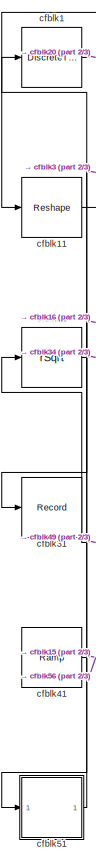
[diagram: root canvas - part 1/3, left side, full height]
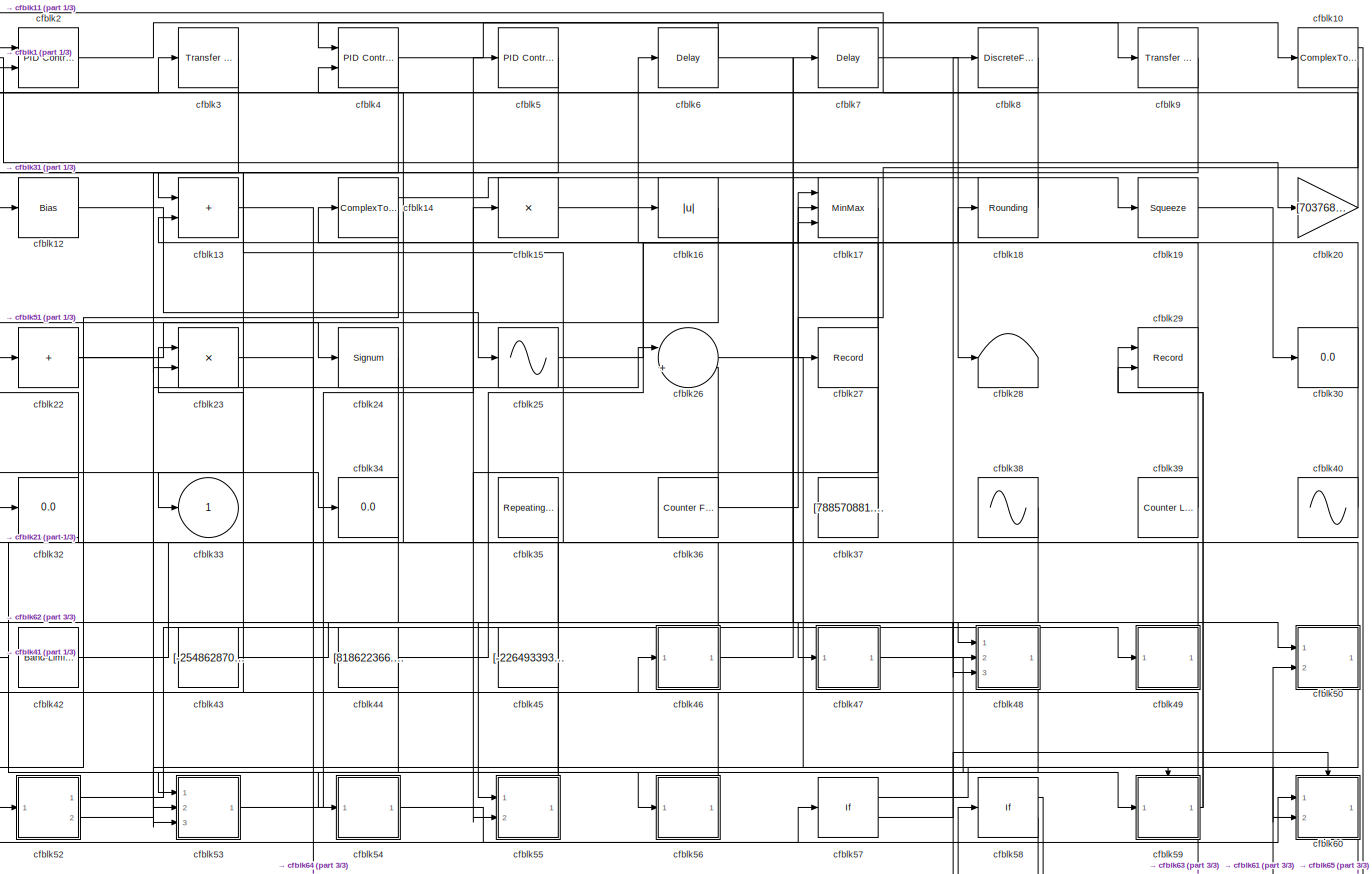
[diagram: root canvas - part 2/3, most of the canvas]
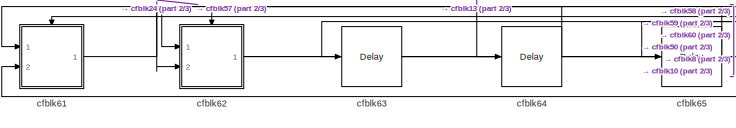
[diagram: root canvas - part 3/3, bottom left region]
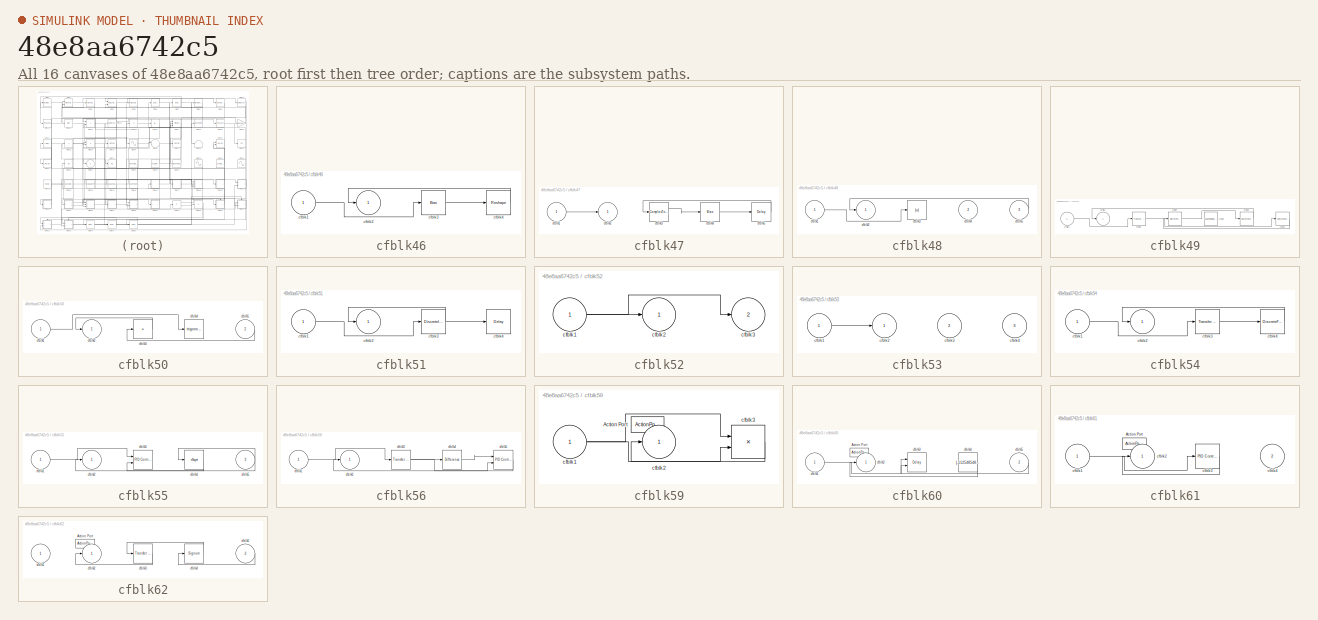
[diagram: thumbnail index - all 16 canvases of the model, root first then tree order]
MODEL slx_48e8aa6742c5
KIND model
CONFIG AbsTol = auto
CONFIG EnableMultiTasking = off
CONFIG FixedStep = auto
CONFIG MaxStep = auto
CONFIG MinStep = auto
CONFIG RelTol = 1e-3
CONFIG SampleTimeConstraint = Unconstrained
CONFIG SolverName = VariableStepAuto
CONFIG StartTime = 0.0
CONFIG StopTime = 10.0
BLOCK [DiscreteTransferFcn] cfblk1
  InputPortMap = u0
  Ports = [1, 1]
  SampleTime = 1
BLOCK [ComplexToMagnitudeAngle] cfblk10
  Ports = [1, 2]
BLOCK [Reshape] cfblk11
  Ports = [1, 1]
BLOCK [Bias] cfblk12
  Bias = [-839679079.278828]
  SaturateOnIntegerOverflow = off
BLOCK [Sum] cfblk13
  IconShape = rectangular
  Ports = [2, 1]
BLOCK [ComplexToRealImag] cfblk14
  Ports = [1, 2]
BLOCK [Product] cfblk15
  Inputs = *
  Ports = [1, 1]
BLOCK [Abs] cfblk16
  SaturateOnIntegerOverflow = off
BLOCK [MinMax] cfblk17
  Inputs = 3
  Ports = [3, 1]
BLOCK [Rounding] cfblk18
BLOCK [Squeeze] cfblk19
BLOCK [Reference] cfblk2  REF=slpidlib/PID Controller (2DOF)
  Ports = [2, 1]
  SourceBlock = slpidlib/PID Controller (2DOF)
  SourceProductBaseCode = SL
  SourceType = PID 2dof
BLOCK [Gain] cfblk20
  Gain = [703768153.704316]
BLOCK [Sqrt] cfblk21
  AlgorithmType = Newton-Raphson
  Operator = rSqrt
BLOCK [Sum] cfblk22
  IconShape = rectangular
  Inputs = +
  Ports = [1, 1]
BLOCK [Product] cfblk23
  Inputs = **
  Ports = [2, 1]
BLOCK [Signum] cfblk24
BLOCK [Sin] cfblk25
  Ports = [1, 1]
  SampleTime = 0
  TimeSource = Use external signal
BLOCK [Sum] cfblk26
  Inputs = |++
  Ports = [2, 1]
BLOCK [Record] cfblk27
  FileSettingsInternal = {"entries":[{"content":{"excelSettings":{"content":{},"type":"Streamout.ExcelSettings"}},"type":"Streamout.FileSettingStorage","uuid":"da171c79-9455-4bc4-b599-ad59c601eab1"}],"packageUris":["http://schema.mathworks.com/mf0/streamout_blocks/R2020a"],"version":"1.0"}
  Ports = [1]
  SignalsInternal = {"entries":[{"content":{"signals":[{"content":{"blockPath":["sampleModel274/cfblk27"],"channel":[],"dimensions":[1],"domain":"sampleModel274/cfblk27","lineColor":"#d95319","plots":[1],"port":1,"sid":[""],"signalID":11430,"signalName":"cfblk10:2"},"type":"RecordBlkView.Signal","uuid":"de21fe3b-9e5d-4fcf-a22f-c191d07c402c"}]},"type":"RecordBlkView.InputSignals","uuid":"227692ee-17b3-4aff-b3a2-317b57...<+100ch>
  VisualizationBindings = {"sparklinesplugin":{"info":[{"bindingParametersList":[],"subplotID":1}]}}
BLOCK [Terminator] cfblk28
BLOCK [Record] cfblk29
  CompatibilityTag = XY
  FileSettingsInternal = {"entries":[{"content":{"excelSettings":{"content":{},"type":"Streamout.ExcelSettings"}},"type":"Streamout.FileSettingStorage","uuid":"df8682e8-c8a1-4e46-83fa-429d7fd2aac6"}],"packageUris":["http://schema.mathworks.com/mf0/streamout_blocks/R2020a"],"version":"1.0"}
  Layout = [1 1]
  Ports = [2]
  SignalsInternal = {"entries":[{"content":{"signals":[{"content":{"blockPath":["sampleModel274/cfblk29"],"channel":[],"dimensions":[1],"domain":"sampleModel274/cfblk29","lineColor":"#a2142f","plots":[1],"port":1,"sid":[""],"signalID":11434,"signalName":"cfblk59"},"type":"RecordBlkView.Signal","uuid":"3771cb38-df6f-4ba8-aa56-16d653237fa3"},{"content":{"blockPath":["sampleModel274/cfblk29"],"channel":[],"dimensions":[...<+385ch>
  VisualizationBindings = {"xyplotplugin":{"info":[{"series":[{"bindingParametersList":[{"parameter":"X-Axis","signalID":11434,"signalName":"cfblk59"},{"parameter":"Y-Axis","signalID":11438,"signalName":"cfblk59"}],"seriesID":42227}],"subplotID":1}]}}
BLOCK [Reference] cfblk3  REF=simulink/Discrete/Transfer Fcn
Real Zero
  Ports = [1, 1]
  SourceBlock = simulink/Discrete/Transfer Fcn\nReal Zero
  SourceProductBaseCode = SL
  SourceType = Transfer Fcn Real Zero
BLOCK [Display] cfblk30
  Decimation = 1
  Ports = [1]
BLOCK [Record] cfblk31
  FileSettingsInternal = {"entries":[{"content":{"excelSettings":{"content":{},"type":"Streamout.ExcelSettings"}},"type":"Streamout.FileSettingStorage","uuid":"8286bbbe-7499-4d96-afe1-02dff4229675"}],"packageUris":["http://schema.mathworks.com/mf0/streamout_blocks/R2020a"],"version":"1.0"}
  Ports = [1]
  SignalsInternal = {"entries":[{"content":{"signals":[{"content":{"blockPath":["sampleModel274/cfblk31"],"channel":[],"dimensions":[1],"domain":"sampleModel274/cfblk31","lineColor":"#77ac30","plots":[1],"port":1,"sid":[""],"signalID":11442,"signalName":"cfblk3"},"type":"RecordBlkView.Signal","uuid":"6ba0b9d0-3280-4b67-acc3-c823acb944ac"}]},"type":"RecordBlkView.InputSignals","uuid":"53318cba-df8b-4c89-a394-e0bd1684e...<+97ch>
  VisualizationBindings = {"sparklinesplugin":{"info":[{"bindingParametersList":[],"subplotID":1}]}}
BLOCK [Display] cfblk32
  Decimation = 1
  Ports = [1]
BLOCK [Outport] cfblk33
BLOCK [Display] cfblk34
  Decimation = 1
  Ports = [1]
BLOCK [Reference] cfblk35  REF=simulink/Sources/Repeating
Sequence
Stair
  Ports = [0, 1]
  SourceBlock = simulink/Sources/Repeating\nSequence\nStair
  SourceProductBaseCode = SL
  SourceType = Repeating Sequence Stair
BLOCK [Reference] cfblk36  REF=simulink/Sources/Counter
Free-Running
  Ports = [0, 1]
  SourceBlock = simulink/Sources/Counter\nFree-Running
  SourceProductBaseCode = SL
  SourceType = Counter Free-Running
BLOCK [Constant] cfblk37
  SampleTime = 1
  Value = [788570881.387773]
BLOCK [Sin] cfblk38
  Amplitude = [-739465234.694335]
  Bias = [254843643.044208]
  Ports = [0, 1]
  SampleTime = 0
BLOCK [Reference] cfblk39  REF=simulink/Sources/Counter
Limited
  Ports = [0, 1]
  SourceBlock = simulink/Sources/Counter\nLimited
  SourceProductBaseCode = SL
  SourceType = Counter Limited
BLOCK [Reference] cfblk4  REF=slpidlib/PID Controller (2DOF)
  Ports = [2, 1]
  SourceBlock = slpidlib/PID Controller (2DOF)
  SourceProductBaseCode = SL
  SourceType = PID 2dof
BLOCK [Sin] cfblk40
  Amplitude = [295858365.780609]
  Bias = [87075267.223711]
  Ports = [0, 1]
  SampleTime = 0
BLOCK [Reference] cfblk41  REF=simulink/Sources/Ramp
  Ports = [0, 1]
  SourceBlock = simulink/Sources/Ramp
  SourceProductBaseCode = SL
  SourceType = Ramp
BLOCK [Reference] cfblk42  REF=simulink/Sources/Band-Limited
White Noise
  Ports = [0, 1]
  SourceBlock = simulink/Sources/Band-Limited\nWhite Noise
  SourceProductBaseCode = SL
  SourceType = Band-Limited White Noise.
BLOCK [Constant] cfblk43
  SampleTime = 1
  Value = [-254862870.291905]
BLOCK [Constant] cfblk44
  SampleTime = 1
  Value = [818622366.403429]
BLOCK [Constant] cfblk45
  SampleTime = 1
  Value = [-226493393.222309]
BLOCK [SubSystem] cfblk46
  Ports = [1, 1]
  RequestExecContextInheritance = off
BLOCK [Inport] cfblk46/cfblk1
BLOCK [Outport] cfblk46/cfblk2
BLOCK [Bias] cfblk46/cfblk3
  Bias = [-974774680.424161]
  SaturateOnIntegerOverflow = off
BLOCK [Reshape] cfblk46/cfblk4
  Ports = [1, 1]
BLOCK [SubSystem] cfblk47
  Ports = [1, 1]
  RequestExecContextInheritance = off
BLOCK [Inport] cfblk47/cfblk1
BLOCK [Outport] cfblk47/cfblk2
BLOCK [ComplexToRealImag] cfblk47/cfblk3
  Ports = [1, 2]
BLOCK [Bias] cfblk47/cfblk4
  Bias = [540442186.712377]
  SaturateOnIntegerOverflow = off
BLOCK [Delay] cfblk47/cfblk5
  InputPortMap = u0
  Ports = [1, 1]
  SampleTime = 1
BLOCK [SubSystem] cfblk48
  Ports = [3, 1]
  RequestExecContextInheritance = off
BLOCK [Inport] cfblk48/cfblk1
BLOCK [Outport] cfblk48/cfblk2
BLOCK [Abs] cfblk48/cfblk3
  SaturateOnIntegerOverflow = off
BLOCK [Inport] cfblk48/cfblk4
  Port = 2
BLOCK [Inport] cfblk48/cfblk5
  Port = 3
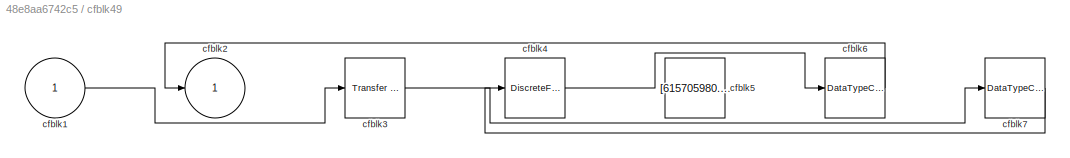
BLOCK [SubSystem] cfblk49
  Ports = [1, 1]
  RequestExecContextInheritance = off
BLOCK [Inport] cfblk49/cfblk1
BLOCK [Outport] cfblk49/cfblk2
BLOCK [Reference] cfblk49/cfblk3  REF=simulink/Discrete/Transfer Fcn
Real Zero
  Ports = [1, 1]
  SourceBlock = simulink/Discrete/Transfer Fcn\nReal Zero
  SourceProductBaseCode = SL
  SourceType = Transfer Fcn Real Zero
BLOCK [DiscreteFilter] cfblk49/cfblk4
  InputPortMap = u0
  Ports = [1, 1]
  SampleTime = 1
BLOCK [Constant] cfblk49/cfblk5
  SampleTime = 1
  Value = [615705980.539279]
BLOCK [DataTypeConversion] cfblk49/cfblk6
  RndMeth = Floor
  SaturateOnIntegerOverflow = off
BLOCK [DataTypeConversion] cfblk49/cfblk7
  RndMeth = Floor
  SaturateOnIntegerOverflow = off
BLOCK [Reference] cfblk5  REF=slpidlib/PID Controller
  Ports = [1, 1]
  SourceBlock = slpidlib/PID Controller
  SourceProductBaseCode = SL
  SourceType = PID 1dof
BLOCK [SubSystem] cfblk50
  Ports = [2, 1]
  RequestExecContextInheritance = off
BLOCK [Inport] cfblk50/cfblk1
BLOCK [Outport] cfblk50/cfblk2
BLOCK [Product] cfblk50/cfblk3
  Inputs = *
  Ports = [1, 1]
BLOCK [Trigonometry] cfblk50/cfblk4
  Ports = [1, 1]
BLOCK [Inport] cfblk50/cfblk5
  Port = 2
BLOCK [SubSystem] cfblk51
  Ports = [1, 1]
  RequestExecContextInheritance = off
BLOCK [Inport] cfblk51/cfblk1
BLOCK [Outport] cfblk51/cfblk2
BLOCK [DiscreteIntegrator] cfblk51/cfblk3
  ICPrevOutput = DiscIntNeverNeededParam
  ICPrevScaledInput = DiscIntNeverNeededParam
  InitialConditionSetting = Auto
  Ports = [1, 1]
BLOCK [Delay] cfblk51/cfblk4
  InputPortMap = u0
  Ports = [1, 1]
  SampleTime = 1
BLOCK [SubSystem] cfblk52
  Ports = [1, 2]
  RequestExecContextInheritance = off
BLOCK [Inport] cfblk52/cfblk1
BLOCK [Outport] cfblk52/cfblk2
BLOCK [Outport] cfblk52/cfblk3
  Port = 2
BLOCK [SubSystem] cfblk53
  Ports = [3, 1]
  RequestExecContextInheritance = off
BLOCK [Inport] cfblk53/cfblk1
BLOCK [Outport] cfblk53/cfblk2
BLOCK [Inport] cfblk53/cfblk3
  Port = 2
BLOCK [Inport] cfblk53/cfblk4
  Port = 3
BLOCK [SubSystem] cfblk54
  Ports = [1, 1]
  RequestExecContextInheritance = off
BLOCK [Inport] cfblk54/cfblk1
BLOCK [Outport] cfblk54/cfblk2
BLOCK [Reference] cfblk54/cfblk3  REF=simulink/Discrete/Transfer Fcn
First Order
  Ports = [1, 1]
  SourceBlock = simulink/Discrete/Transfer Fcn\nFirst Order
  SourceProductBaseCode = SL
  SourceType = First Order Transfer Fcn
BLOCK [DiscreteFir] cfblk54/cfblk4
  InputPortMap = u0
  OutputPortMap = o0
  Ports = [1, 1]
  SampleTime = 1
BLOCK [SubSystem] cfblk55
  Ports = [2, 1]
  RequestExecContextInheritance = off
BLOCK [Inport] cfblk55/cfblk1
BLOCK [Outport] cfblk55/cfblk2
BLOCK [Reference] cfblk55/cfblk3  REF=slpidlib/PID Controller (2DOF)
  Ports = [2, 1]
  SourceBlock = slpidlib/PID Controller (2DOF)
  SourceProductBaseCode = SL
  SourceType = PID 2dof
BLOCK [Sqrt] cfblk55/cfblk4
  AlgorithmType = Newton-Raphson
  Operator = rSqrt
BLOCK [Inport] cfblk55/cfblk5
  Port = 2
BLOCK [SubSystem] cfblk56
  Ports = [1, 1]
  RequestExecContextInheritance = off
BLOCK [Inport] cfblk56/cfblk1
BLOCK [Outport] cfblk56/cfblk2
BLOCK [Reference] cfblk56/cfblk3  REF=simulink/Discrete/Transfer Fcn
Lead or Lag
  Ports = [1, 1]
  SourceBlock = simulink/Discrete/Transfer Fcn\nLead or Lag
  SourceProductBaseCode = SL
  SourceType = Lead or Lag Compensator
BLOCK [Reference] cfblk56/cfblk4  REF=simulink/Discrete/Difference
  Ports = [1, 1]
  SourceBlock = simulink/Discrete/Difference
  SourceProductBaseCode = SL
  SourceType = Difference
BLOCK [Reference] cfblk56/cfblk5  REF=slpidlib/PID Controller (2DOF)
  Ports = [2, 1]
  SourceBlock = slpidlib/PID Controller (2DOF)
  SourceProductBaseCode = SL
  SourceType = PID 2dof
BLOCK [If] cfblk57
  IfExpression = u1 >= 0
  Ports = [1, 2]
  SampleTime = 1
BLOCK [If] cfblk58
  IfExpression = u1 >= 0
  Ports = [1, 2]
  SampleTime = 1
BLOCK [SubSystem] cfblk59
  Ports = [1, 1, 0, 0, 0, 0, 0, 1]
  RequestExecContextInheritance = off
  TreatAsAtomicUnit = on
BLOCK [ActionPort] cfblk59/Action Port
  ActionPortLabel = if(u1 >= 0)
BLOCK [Inport] cfblk59/cfblk1
BLOCK [Outport] cfblk59/cfblk2
BLOCK [Product] cfblk59/cfblk3
  Ports = [2, 1]
BLOCK [Delay] cfblk6
  InputPortMap = u0
  Ports = [1, 1]
  SampleTime = 1
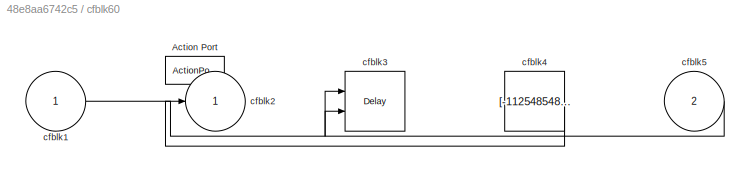
BLOCK [SubSystem] cfblk60
  Ports = [2, 1, 0, 0, 0, 0, 0, 1]
  RequestExecContextInheritance = off
  TreatAsAtomicUnit = on
BLOCK [ActionPort] cfblk60/Action Port
  ActionPortLabel = else
BLOCK [Inport] cfblk60/cfblk1
BLOCK [Outport] cfblk60/cfblk2
BLOCK [Delay] cfblk60/cfblk3
  InputPortMap = u0,e6
  Ports = [2, 1]
  ShowEnablePort = on
BLOCK [Constant] cfblk60/cfblk4
  SampleTime = 1
  Value = [-112548548.427736]
BLOCK [Inport] cfblk60/cfblk5
  Port = 2
BLOCK [SubSystem] cfblk61
  Ports = [2, 1, 0, 0, 0, 0, 0, 1]
  RequestExecContextInheritance = off
  TreatAsAtomicUnit = on
BLOCK [ActionPort] cfblk61/Action Port
  ActionPortLabel = if(u1 >= 0)
BLOCK [Inport] cfblk61/cfblk1
BLOCK [Outport] cfblk61/cfblk2
BLOCK [Reference] cfblk61/cfblk3  REF=slpidlib/PID Controller
  Ports = [1, 1]
  SourceBlock = slpidlib/PID Controller
  SourceProductBaseCode = SL
  SourceType = PID 1dof
BLOCK [Inport] cfblk61/cfblk4
  Port = 2
BLOCK [SubSystem] cfblk62
  Ports = [2, 1, 0, 0, 0, 0, 0, 1]
  RequestExecContextInheritance = off
  TreatAsAtomicUnit = on
BLOCK [ActionPort] cfblk62/Action Port
  ActionPortLabel = else
BLOCK [Inport] cfblk62/cfblk1
BLOCK [Outport] cfblk62/cfblk2
BLOCK [Reference] cfblk62/cfblk3  REF=simulink/Discrete/Transfer Fcn
Real Zero
  Ports = [1, 1]
  SourceBlock = simulink/Discrete/Transfer Fcn\nReal Zero
  SourceProductBaseCode = SL
  SourceType = Transfer Fcn Real Zero
BLOCK [Signum] cfblk62/cfblk4
BLOCK [Inport] cfblk62/cfblk5
  Port = 2
BLOCK [Delay] cfblk63
  InputPortMap = u0
  Ports = [1, 1]
  SampleTime = 1
BLOCK [Delay] cfblk64
  InputPortMap = u0
  Ports = [1, 1]
  SampleTime = 1
BLOCK [Delay] cfblk65
  InputPortMap = u0
  Ports = [1, 1]
  SampleTime = 1
BLOCK [Delay] cfblk7
  InputPortMap = u0
  Ports = [1, 1]
  SampleTime = 1
BLOCK [DiscreteFilter] cfblk8
  InputPortMap = u0
  Ports = [1, 1]
  SampleTime = 1
BLOCK [Reference] cfblk9  REF=simulink/Discrete/Transfer Fcn
Lead or Lag
  Ports = [1, 1]
  SourceBlock = simulink/Discrete/Transfer Fcn\nLead or Lag
  SourceProductBaseCode = SL
  SourceType = Lead or Lag Compensator
LINE cfblk10:1 -> cfblk61:2
LINE cfblk10:2 -> cfblk27:1
LINE cfblk11:1 -> cfblk3:1
LINE cfblk12:1 -> cfblk25:1
LINE cfblk13:1 -> cfblk64:1
LINE cfblk14:1 -> cfblk19:1
LINE cfblk14:2 -> cfblk52:1
LINE cfblk15:1 -> cfblk16:1
LINE cfblk16:1 -> cfblk51:1
LINE cfblk17:1 -> cfblk55:2
LINE cfblk18:1 -> cfblk2:1
LINE cfblk19:1 -> cfblk30:1
LINE cfblk1:1 -> cfblk20:1
LINE cfblk20:1 -> cfblk11:1
LINE cfblk21:1 -> cfblk34:1
NET cfblk22:1 -> cfblk24:1, cfblk48:3
LINE cfblk23:1 -> cfblk48:1
LINE cfblk24:1 -> cfblk62:2
LINE cfblk25:1 -> cfblk17:1
LINE cfblk26:1 -> cfblk60:2
LINE cfblk2:1 -> cfblk9:1
LINE cfblk35:1 -> cfblk55:1
NET cfblk36:1 -> cfblk17:2, cfblk26:2
LINE cfblk37:1 -> cfblk6:1
LINE cfblk38:1 -> cfblk47:1
LINE cfblk39:1 -> cfblk14:1
LINE cfblk3:1 -> cfblk31:1
LINE cfblk40:1 -> cfblk13:2
NET cfblk41:1 -> cfblk15:1, cfblk56:1
LINE cfblk42:1 -> cfblk7:1
LINE cfblk43:1 -> cfblk50:1
NET cfblk44:1 -> cfblk17:3, cfblk53:2
NET cfblk45:1 -> cfblk4:2, cfblk54:1
LINE cfblk46/cfblk1:1 -> cfblk46/cfblk3:1
LINE cfblk46/cfblk3:1 -> cfblk46/cfblk4:1
LINE cfblk46/cfblk4:1 -> cfblk46/cfblk2:1
NET cfblk46:1 -> cfblk18:1, cfblk22:1
LINE cfblk47/cfblk1:1 -> cfblk47/cfblk2:1
LINE cfblk47/cfblk3:1 -> cfblk47/cfblk4:1
LINE cfblk47/cfblk4:1 -> cfblk47/cfblk5:1
LINE cfblk47/cfblk5:1 -> cfblk47/cfblk3:1
LINE cfblk47:1 -> cfblk59:1
LINE cfblk48/cfblk1:1 -> cfblk48/cfblk3:1
LINE cfblk48/cfblk5:1 -> cfblk48/cfblk2:1
LINE cfblk48:1 -> cfblk53:1
LINE cfblk49/cfblk1:1 -> cfblk49/cfblk3:1
LINE cfblk49/cfblk3:1 -> cfblk49/cfblk7:1
LINE cfblk49/cfblk4:1 -> cfblk49/cfblk6:1
LINE cfblk49/cfblk6:1 -> cfblk49/cfblk2:1
LINE cfblk49/cfblk7:1 -> cfblk49/cfblk4:1
LINE cfblk49:1 -> cfblk21:1
NET cfblk4:1 -> cfblk10:1, cfblk23:2
LINE cfblk50/cfblk1:1 -> cfblk50/cfblk4:1
LINE cfblk50/cfblk3:1 -> cfblk50/cfblk2:1
LINE cfblk50/cfblk5:1 -> cfblk50/cfblk3:1
NET cfblk50:1 -> cfblk13:1, cfblk53:3
LINE cfblk51/cfblk1:1 -> cfblk51/cfblk3:1
NET cfblk51/cfblk3:1 -> cfblk51/cfblk2:1, cfblk51/cfblk4:1
LINE cfblk51:1 -> cfblk1:1
NET cfblk52/cfblk1:1 -> cfblk52/cfblk2:1, cfblk52/cfblk3:1
LINE cfblk52:1 -> cfblk49:1
LINE cfblk52:2 -> cfblk26:1
LINE cfblk53/cfblk1:1 -> cfblk53/cfblk2:1
LINE cfblk53:1 -> cfblk5:1
LINE cfblk54/cfblk1:1 -> cfblk54/cfblk3:1
LINE cfblk54/cfblk3:1 -> cfblk54/cfblk4:1
LINE cfblk54/cfblk4:1 -> cfblk54/cfblk2:1
LINE cfblk54:1 -> cfblk60:1
LINE cfblk55/cfblk1:1 -> cfblk55/cfblk3:1
LINE cfblk55/cfblk4:1 -> cfblk55/cfblk2:1
NET cfblk55/cfblk5:1 -> cfblk55/cfblk3:2, cfblk55/cfblk4:1
LINE cfblk55:1 -> cfblk32:1
LINE cfblk56/cfblk1:1 -> cfblk56/cfblk3:1
NET cfblk56/cfblk3:1 -> cfblk56/cfblk4:1, cfblk56/cfblk5:2
LINE cfblk56/cfblk4:1 -> cfblk56/cfblk5:1
LINE cfblk56/cfblk5:1 -> cfblk56/cfblk2:1
LINE cfblk56:1 -> cfblk46:1
LINE cfblk57:1 -> cfblk59:ifaction
LINE cfblk57:2 -> cfblk60:ifaction
LINE cfblk58:1 -> cfblk61:ifaction
LINE cfblk58:2 -> cfblk62:ifaction
NET cfblk59/cfblk1:1 -> cfblk59/cfblk3:1, cfblk59/cfblk3:2
LINE cfblk59/cfblk3:1 -> cfblk59/cfblk2:1
NET cfblk59:1 -> cfblk23:1, cfblk29:1, cfblk29:2, cfblk63:1
LINE cfblk5:1 -> cfblk33:1
LINE cfblk60/cfblk1:1 -> cfblk60/cfblk3:1
LINE cfblk60/cfblk4:1 -> cfblk60/cfblk2:1
LINE cfblk60/cfblk5:1 -> cfblk60/cfblk3:2
LINE cfblk60:1 -> cfblk65:1
LINE cfblk61/cfblk1:1 -> cfblk61/cfblk3:1
LINE cfblk61/cfblk3:1 -> cfblk61/cfblk2:1
LINE cfblk61:1 -> cfblk57:1
LINE cfblk62/cfblk3:1 -> cfblk62/cfblk2:1
LINE cfblk62/cfblk4:1 -> cfblk62/cfblk3:1
LINE cfblk62/cfblk5:1 -> cfblk62/cfblk4:1
NET cfblk62:1 -> cfblk50:2, cfblk8:1
LINE cfblk63:1 -> cfblk58:1
LINE cfblk64:1 -> cfblk62:1
LINE cfblk65:1 -> cfblk61:1
NET cfblk6:1 -> cfblk48:2, cfblk4:1
LINE cfblk7:1 -> cfblk28:1
LINE cfblk8:1 -> cfblk2:2
LINE cfblk9:1 -> cfblk12:1
note: NET lines group one-source signal fan-out (src -> all destinations, sorted); 1:1 wires keep LINE
